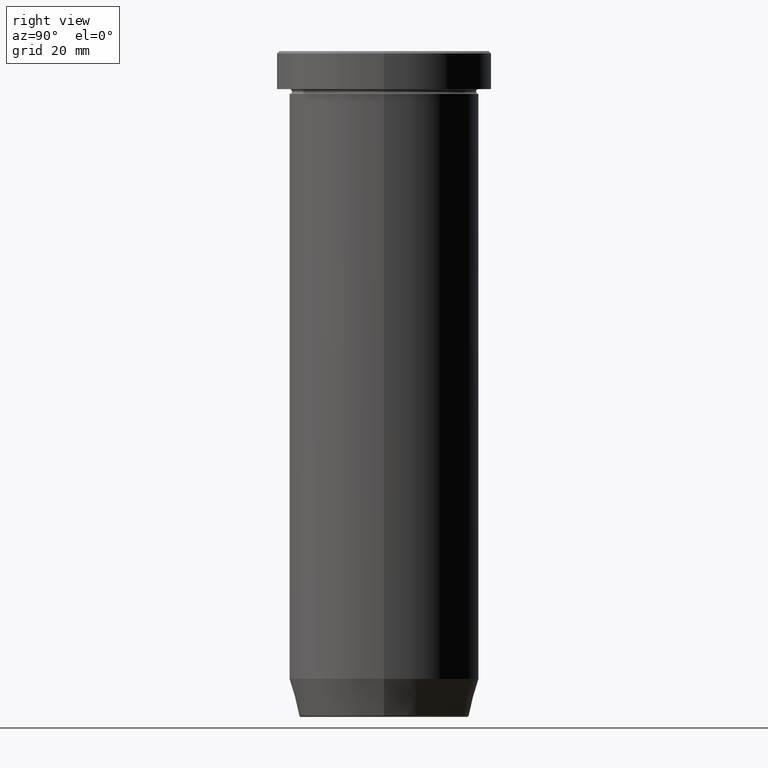
[diagram: clean part render]
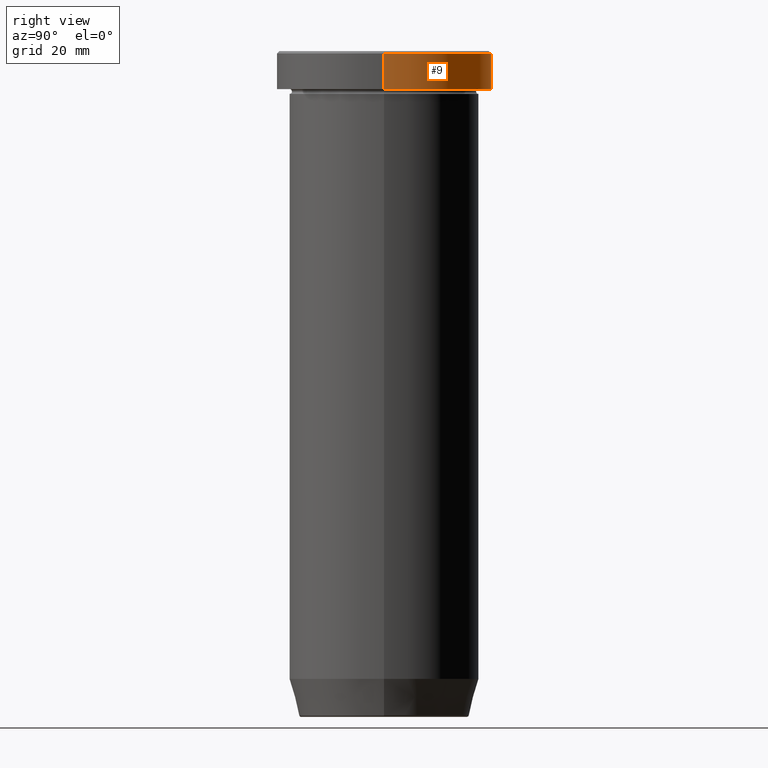
[diagram: same view with one face highlighted and labeled with its STEP entity id]
A machine part, right view. The second image highlights one B-rep face of the part: STEP entity #9.
In plain terms, the highlighted cylindrical surface (partial cylindrical patch) has radius 22.5 mm, axis along (-0, -0, 1).
Its self-contained STEP definition (entity closure, byte-faithful):
#9 = ADVANCED_FACE ( 'NONE', ( #467 ), #372, .T. ) ;
#47 = AXIS2_PLACEMENT_3D ( 'NONE', #460, #48, #91 ) ;
#48 = DIRECTION ( 'NONE',  ( -0.000000000000000000, -0.000000000000000000, 1.000000000000000000 ) ) ;
#57 = CIRCLE ( 'NONE', #210, 22.50000000000000000 ) ;
#58 = DIRECTION ( 'NONE',  ( 1.000000000000000000, 0.000000000000000000, 0.000000000000000000 ) ) ;
#65 = DIRECTION ( 'NONE',  ( -0.000000000000000000, -0.000000000000000000, 1.000000000000000000 ) ) ;
#78 = ORIENTED_EDGE ( 'NONE', *, *, #383, .T. ) ;
#83 = CIRCLE ( 'NONE', #47, 22.50000000000000000 ) ;
#91 = DIRECTION ( 'NONE',  ( 1.000000000000000000, 0.000000000000000000, 0.000000000000000000 ) ) ;
#98 = VERTEX_POINT ( 'NONE', #379 ) ;
#99 = CARTESIAN_POINT ( 'NONE',  ( 0.000000000000000000, 0.000000000000000000, -0.5000000000000073275 ) ) ;
#101 = VERTEX_POINT ( 'NONE', #569 ) ;
#128 = DIRECTION ( 'NONE',  ( -0.000000000000000000, -0.000000000000000000, 1.000000000000000000 ) ) ;
#138 = ORIENTED_EDGE ( 'NONE', *, *, #252, .F. ) ;
#141 = CARTESIAN_POINT ( 'NONE',  ( -22.50000000000000000, 2.755455298081544778E-15, -7.999999999999998224 ) ) ;
#144 = DIRECTION ( 'NONE',  ( 1.000000000000000000, 0.000000000000000000, 0.000000000000000000 ) ) ;
#145 = EDGE_CURVE ( 'NONE', #465, #101, #342, .T. ) ;
#201 = VECTOR ( 'NONE', #128, 1000.000000000000000 ) ;
#210 = AXIS2_PLACEMENT_3D ( 'NONE', #99, #277, #58 ) ;
#240 = ORIENTED_EDGE ( 'NONE', *, *, #482, .T. ) ;
#244 = VECTOR ( 'NONE', #65, 1000.000000000000000 ) ;
#252 = EDGE_CURVE ( 'NONE', #508, #98, #535, .T. ) ;
#259 = CARTESIAN_POINT ( 'NONE',  ( 22.50000000000000000, 0.000000000000000000, 0.000000000000000000 ) ) ;
#277 = DIRECTION ( 'NONE',  ( 0.000000000000000000, 0.000000000000000000, -1.000000000000000000 ) ) ;
#313 = CARTESIAN_POINT ( 'NONE',  ( 0.000000000000000000, 0.000000000000000000, 0.000000000000000000 ) ) ;
#342 = LINE ( 'NONE', #526, #244 ) ;
#372 = CYLINDRICAL_SURFACE ( 'NONE', #425, 22.50000000000000000 ) ;
#379 = CARTESIAN_POINT ( 'NONE',  ( 22.50000000000000000, 0.000000000000000000, -0.5000000000000073275 ) ) ;
#380 = CARTESIAN_POINT ( 'NONE',  ( 22.50000000000000000, 0.000000000000000000, -7.999999999999998224 ) ) ;
#383 = EDGE_CURVE ( 'NONE', #508, #465, #83, .T. ) ;
#425 = AXIS2_PLACEMENT_3D ( 'NONE', #313, #564, #144 ) ;
#460 = CARTESIAN_POINT ( 'NONE',  ( 0.000000000000000000, 0.000000000000000000, -7.999999999999998224 ) ) ;
#465 = VERTEX_POINT ( 'NONE', #141 ) ;
#467 = FACE_OUTER_BOUND ( 'NONE', #580, .T. ) ;
#482 = EDGE_CURVE ( 'NONE', #101, #98, #57, .T. ) ;
#504 = ORIENTED_EDGE ( 'NONE', *, *, #145, .T. ) ;
#508 = VERTEX_POINT ( 'NONE', #380 ) ;
#526 = CARTESIAN_POINT ( 'NONE',  ( -22.50000000000000000, 2.755455298081544778E-15, 0.000000000000000000 ) ) ;
#535 = LINE ( 'NONE', #259, #201 ) ;
#564 = DIRECTION ( 'NONE',  ( -0.000000000000000000, -0.000000000000000000, 1.000000000000000000 ) ) ;
#569 = CARTESIAN_POINT ( 'NONE',  ( -22.50000000000000000, 2.755455298081544778E-15, -0.5000000000000073275 ) ) ;
#580 = EDGE_LOOP ( 'NONE', ( #78, #504, #240, #138 ) ) ;